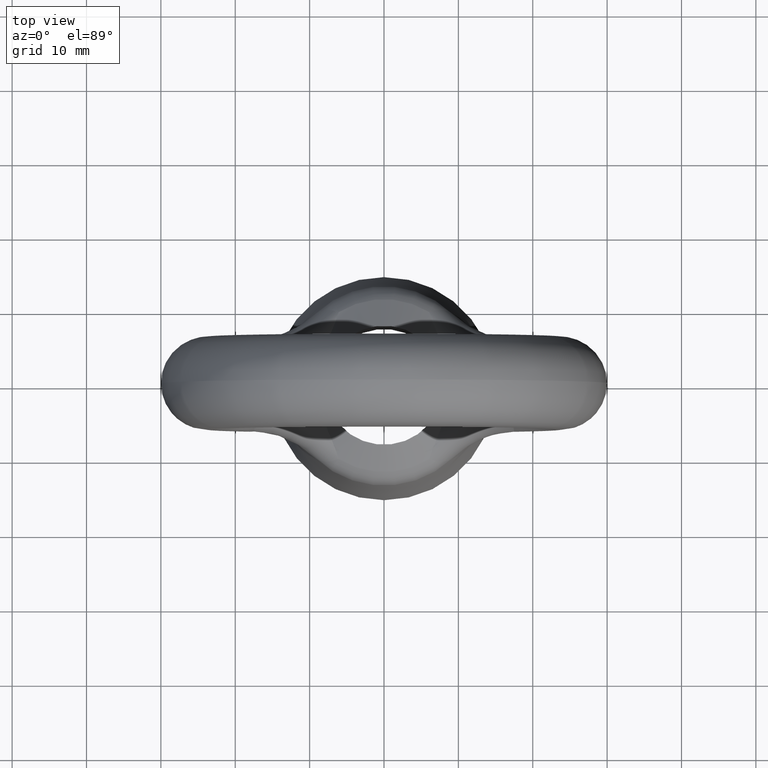
[diagram: clean part render]
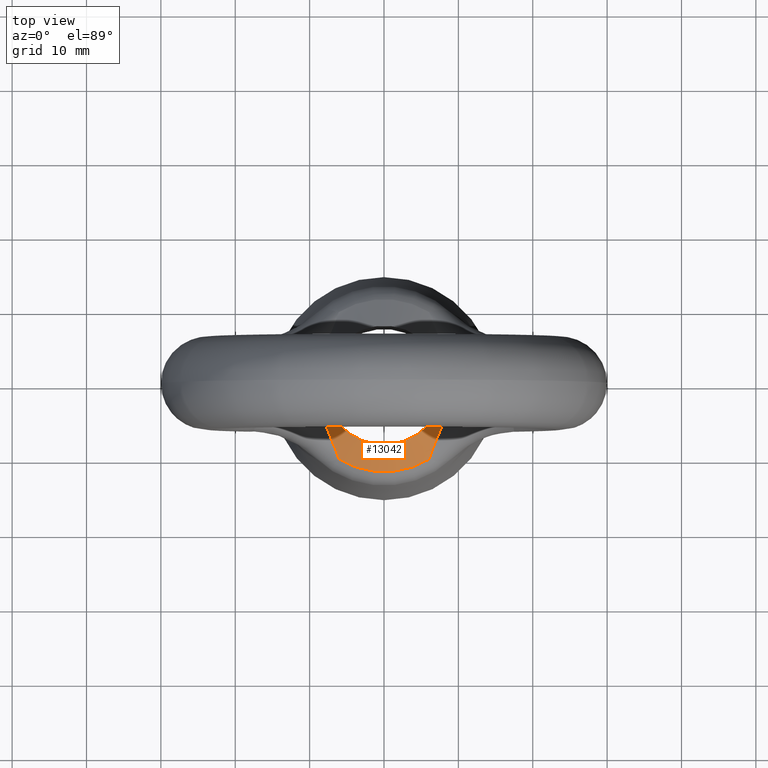
[diagram: same view with one face highlighted and labeled with its STEP entity id]
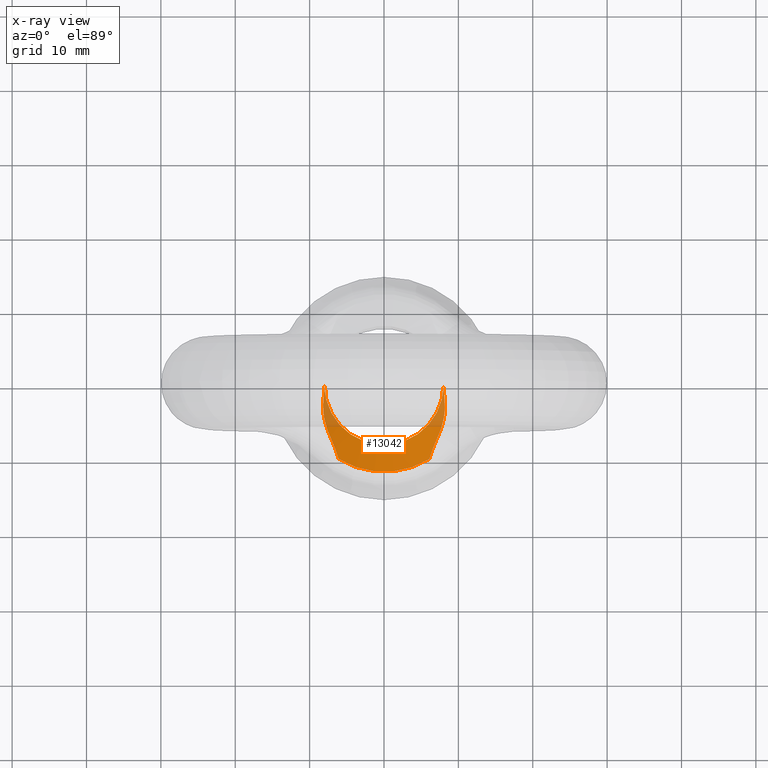
[diagram: x-ray of the same camera — body ghosted, the highlighted face saturated]
A machine part, top view. The second image highlights one B-rep face of the part: STEP entity #13042.
The next image is the same camera in x-ray: the body ghosted, the highlighted face saturated — about 14% of this face is hidden behind the body in this view.
In plain terms, the highlighted conical surface has half-angle 56.799 deg.
Its self-contained STEP definition (entity closure, byte-faithful):
#7915 = CARTESIAN_POINT ( 'NONE',  ( 8.111039694346169800, -1.587437685473579900, -15.73774275576744800 ) ) ;
#7916 = CARTESIAN_POINT ( 'NONE',  ( 8.217635790116757400, -2.314430314569295300, -15.89757747233821700 ) ) ;
#7917 = CARTESIAN_POINT ( 'NONE',  ( 8.226555854875679000, -3.040233067266938000, -16.05058232089250900 ) ) ;
#7918 = CARTESIAN_POINT ( 'NONE',  ( 8.100513173254370300, -4.126467812943272600, -16.27400688545046500 ) ) ;
#7919 = CARTESIAN_POINT ( 'NONE',  ( 8.034309954976079000, -4.490310097197134800, -16.34791179823740500 ) ) ;
#7920 = CARTESIAN_POINT ( 'NONE',  ( 7.859311400499129800, -5.202648705140567200, -16.49285660825615800 ) ) ;
#7921 = CARTESIAN_POINT ( 'NONE',  ( 7.750543323805493000, -5.551610496330256200, -16.56388529958299900 ) ) ;
#7932 = CARTESIAN_POINT ( 'NONE',  ( 7.375712610483119200, -6.579826749095270900, -16.78131778740051400 ) ) ;
#7933 = CARTESIAN_POINT ( 'NONE',  ( 7.058717465188572700, -7.239327123376845000, -16.93283068266142900 ) ) ;
#7934 = CARTESIAN_POINT ( 'NONE',  ( 6.653723414931219400, -8.227540426303065100, -17.25049923829543300 ) ) ;
#7935 = CARTESIAN_POINT ( 'NONE',  ( 6.528693431890683700, -8.556584339415492100, -17.36990509252606100 ) ) ;
#7936 = CARTESIAN_POINT ( 'NONE',  ( 6.355134076538875300, -9.050376589787532600, -17.56546316260718800 ) ) ;
#7937 = CARTESIAN_POINT ( 'NONE',  ( 6.299539716819043500, -9.214994829293337000, -17.63335989737461100 ) ) ;
#7938 = CARTESIAN_POINT ( 'NONE',  ( 6.192426394619384500, -9.544315074302424800, -17.77388554528459600 ) ) ;
#7939 = CARTESIAN_POINT ( 'NONE',  ( 6.140479205031492200, -9.710695131647845800, -17.84730325807265700 ) ) ;
#7970 = CARTESIAN_POINT ( 'NONE',  ( 6.091302224946269400, -9.873597760385759900, -17.92113412167020000 ) ) ;
#7971 = B_SPLINE_CURVE_WITH_KNOTS ( 'NONE', 3,
 ( #7970, #7939, #7938, #7937, #7936, #7935, #7934, #7933, #7932, #7921, #7920, #7919, #7918, #7917, #7916, #7915 ),
 .UNSPECIFIED., .F., .F.,
 ( 4, 2, 2, 2, 2, 2, 2, 4 ),
 ( -1.851355383079301500E-005, 0.0005379572279559895200, 0.001094428009742772100, 0.002207369573316341300, 0.004433252700463475800, 0.005546194264037043900, 0.006659135827610611200, 0.008885018954757743100 ),
 .UNSPECIFIED. ) ;
#12548 = CARTESIAN_POINT ( 'NONE',  ( -6.091302224946269400, -9.873597760385751000, -17.92113412167020000 ) ) ;
#12549 = CARTESIAN_POINT ( 'NONE',  ( -8.217635998707377700, -2.314431737171499300, -15.89757778510785300 ) ) ;
#12550 = CARTESIAN_POINT ( 'NONE',  ( -8.111039694346160900, -1.587437685473565000, -15.73774275576744800 ) ) ;
#12552 = B_SPLINE_CURVE_WITH_KNOTS ( 'NONE', 3,
 ( #12550, #12549, #12591, #12590, #12589, #12588, #12587, #12586, #12585, #12584, #12583, #12582, #12581, #12580, #12579, #12578 ),
 .UNSPECIFIED., .F., .F.,
 ( 4, 2, 2, 2, 2, 2, 2, 4 ),
 ( 9.948699630566629800E-018, 0.002223794718669929400, 0.003335692078004891500, 0.004447589437339852800, 0.006671384156009777800, 0.007783281515344743000, 0.008339230195012228100, 0.008895178874679712500 ),
 .UNSPECIFIED. ) ;
#12578 = CARTESIAN_POINT ( 'NONE',  ( -6.091302224946269400, -9.873597760385751000, -17.92113412167020000 ) ) ;
#12579 = CARTESIAN_POINT ( 'NONE',  ( -6.140433064541015000, -9.710847973019580700, -17.84737252869069100 ) ) ;
#12580 = CARTESIAN_POINT ( 'NONE',  ( -6.192421693561192000, -9.544329898502747200, -17.77389200909144400 ) ) ;
#12581 = CARTESIAN_POINT ( 'NONE',  ( -6.299534985769382100, -9.215009004170955400, -17.63336580790032200 ) ) ;
#12582 = CARTESIAN_POINT ( 'NONE',  ( -6.355129332439315000, -9.050390440746346200, -17.56546879633895800 ) ) ;
#12583 = CARTESIAN_POINT ( 'NONE',  ( -6.528688655799907500, -8.556597220744974300, -17.36990989738859200 ) ) ;
#12584 = CARTESIAN_POINT ( 'NONE',  ( -6.653718617779438700, -8.227552662357165800, -17.25050348697773800 ) ) ;
#12585 = CARTESIAN_POINT ( 'NONE',  ( -7.058712794417818500, -7.239337459057872500, -16.93283337453760100 ) ) ;
#12586 = CARTESIAN_POINT ( 'NONE',  ( -7.375708695414563600, -6.579835946541130000, -16.78131982651492400 ) ) ;
#12587 = CARTESIAN_POINT ( 'NONE',  ( -7.750540880452550000, -5.551617969880273200, -16.56388683289849000 ) ) ;
#12588 = CARTESIAN_POINT ( 'NONE',  ( -7.859309442581447600, -5.202655590875020900, -16.49285801192319700 ) ) ;
#12589 = CARTESIAN_POINT ( 'NONE',  ( -8.034308830905056100, -4.490315756801759800, -16.34791294726344200 ) ) ;
#12590 = CARTESIAN_POINT ( 'NONE',  ( -8.100512414003945900, -4.126472769235884500, -16.27400789822528500 ) ) ;
#12591 = CARTESIAN_POINT ( 'NONE',  ( -8.226555893507397200, -3.040235908153027500, -16.05058291856831700 ) ) ;
#13042 = ADVANCED_FACE ( 'NONE', ( #13129 ), #13127, .T. ) ;
#13043 = EDGE_LOOP ( 'NONE', ( #13310, #13311, #13156, #13222, #13224, #13225 ) ) ;
#13070 = EDGE_CURVE ( 'NONE', #13079, #13071, #13471, .T. ) ;
#13071 = VERTEX_POINT ( 'NONE', #13470 ) ;
#13073 = VERTEX_POINT ( 'NONE', #13454 ) ;
#13079 = VERTEX_POINT ( 'NONE', #13600 ) ;
#13085 = EDGE_CURVE ( 'NONE', #13073, #13086, #13536, .T. ) ;
#13086 = VERTEX_POINT ( 'NONE', #13537 ) ;
#13120 = DIRECTION ( 'NONE',  ( 1.000000000000000000, 0.0000000000000000000, 0.0000000000000000000 ) ) ;
#13121 = DIRECTION ( 'NONE',  ( 0.0000000000000000000, 0.0000000000000000000, 1.000000000000000000 ) ) ;
#13122 = CARTESIAN_POINT ( 'NONE',  ( 0.0000000000000000000, 0.0000000000000000000, -17.92113412167020000 ) ) ;
#13123 = AXIS2_PLACEMENT_3D ( 'NONE', #13122, #13121, #13120 ) ;
#13124 = CIRCLE ( 'NONE', #13123, 11.60137472584736100 ) ;
#13127 = CONICAL_SURFACE ( 'NONE', #13297, 13.25006019968007800, 0.9913307740979019300 ) ;
#13129 = FACE_OUTER_BOUND ( 'NONE', #13043, .T. ) ;
#13153 = EDGE_CURVE ( 'NONE', #13073, #13071, #13369, .T. ) ;
#13156 = ORIENTED_EDGE ( 'NONE', *, *, #13157, .T. ) ;
#13157 = EDGE_CURVE ( 'NONE', #13313, #13158, #13124, .T. ) ;
#13158 = VERTEX_POINT ( 'NONE', #13352 ) ;
#13222 = ORIENTED_EDGE ( 'NONE', *, *, #13223, .T. ) ;
#13223 = EDGE_CURVE ( 'NONE', #13158, #13086, #7971, .T. ) ;
#13224 = ORIENTED_EDGE ( 'NONE', *, *, #13085, .F. ) ;
#13225 = ORIENTED_EDGE ( 'NONE', *, *, #13153, .T. ) ;
#13295 = DIRECTION ( 'NONE',  ( 0.0000000000000000000, 0.0000000000000000000, -1.000000000000000000 ) ) ;
#13296 = CARTESIAN_POINT ( 'NONE',  ( 0.0000000000000000000, 0.0000000000000000000, -19.00004190762270200 ) ) ;
#13297 = AXIS2_PLACEMENT_3D ( 'NONE', #13296, #13295, #13322 ) ;
#13310 = ORIENTED_EDGE ( 'NONE', *, *, #13070, .F. ) ;
#13311 = ORIENTED_EDGE ( 'NONE', *, *, #13312, .T. ) ;
#13312 = EDGE_CURVE ( 'NONE', #13079, #13313, #12552, .T. ) ;
#13313 = VERTEX_POINT ( 'NONE', #12548 ) ;
#13322 = DIRECTION ( 'NONE',  ( -1.000000000000000000, 0.0000000000000000000, 0.0000000000000000000 ) ) ;
#13332 = DIRECTION ( 'NONE',  ( -1.000000000000000000, 0.0000000000000000000, 0.0000000000000000000 ) ) ;
#13352 = CARTESIAN_POINT ( 'NONE',  ( 6.091302224946269400, -9.873597760385759900, -17.92113412167020000 ) ) ;
#13366 = DIRECTION ( 'NONE',  ( 0.0000000000000000000, 0.0000000000000000000, -1.000000000000000000 ) ) ;
#13367 = CARTESIAN_POINT ( 'NONE',  ( 0.0000000000000000000, 0.0000000000000000000, -15.56437700000010200 ) ) ;
#13368 = AXIS2_PLACEMENT_3D ( 'NONE', #13367, #13366, #13332 ) ;
#13369 = CIRCLE ( 'NONE', #13368, 8.000000000000000000 ) ;
#13451 = CARTESIAN_POINT ( 'NONE',  ( -8.045737007442703300, -1.068063597566312900, -15.63773547490219300 ) ) ;
#13452 = CARTESIAN_POINT ( 'NONE',  ( -8.073215190745678200, -1.329471996224376600, -15.68102708744298600 ) ) ;
#13453 = CARTESIAN_POINT ( 'NONE',  ( -8.111039694346160900, -1.587437685473565000, -15.73774275576744800 ) ) ;
#13454 = CARTESIAN_POINT ( 'NONE',  ( 8.000000000000000000, 0.0000000000000000000, -15.56437700000015000 ) ) ;
#13470 = CARTESIAN_POINT ( 'NONE',  ( -8.000000000000000000, 0.0000000000000000000, -15.56437700000010200 ) ) ;
#13471 = B_SPLINE_CURVE_WITH_KNOTS ( 'NONE', 3,
 ( #13453, #13452, #13451, #13609, #13608, #13607 ),
 .UNSPECIFIED., .F., .F.,
 ( 4, 2, 4 ),
 ( 0.007011151935412306000, 0.007809217623441650100, 0.008607283311470995100 ),
 .UNSPECIFIED. ) ;
#13517 = CARTESIAN_POINT ( 'NONE',  ( 8.111039694346169800, -1.587437685473579900, -15.73774275576744800 ) ) ;
#13518 = CARTESIAN_POINT ( 'NONE',  ( 8.034739435842126900, -1.067064728757689500, -15.62333490523499800 ) ) ;
#13519 = CARTESIAN_POINT ( 'NONE',  ( 8.000004606485253700, -0.5378854802323731500, -15.56437998610500500 ) ) ;
#13520 = CARTESIAN_POINT ( 'NONE',  ( 8.000000000000000000, 0.0000000000000000000, -15.56437700000015000 ) ) ;
#13536 = B_SPLINE_CURVE_WITH_KNOTS ( 'NONE', 3,
 ( #13520, #13519, #13518, #13517 ),
 .UNSPECIFIED., .F., .F.,
 ( 4, 4 ),
 ( 0.008607283311471000300, 0.01020782760571694500 ),
 .UNSPECIFIED. ) ;
#13537 = CARTESIAN_POINT ( 'NONE',  ( 8.111039694346169800, -1.587437685473579900, -15.73774275576744800 ) ) ;
#13600 = CARTESIAN_POINT ( 'NONE',  ( -8.111039694346160900, -1.587437685473565000, -15.73774275576744800 ) ) ;
#13607 = CARTESIAN_POINT ( 'NONE',  ( -8.000000000000000000, 0.0000000000000000000, -15.56437700000010200 ) ) ;
#13608 = CARTESIAN_POINT ( 'NONE',  ( -8.000004650171268500, -0.2682021957783544100, -15.56438005725637600 ) ) ;
#13609 = CARTESIAN_POINT ( 'NONE',  ( -8.009119476214849000, -0.5383928130978474800, -15.57938130876970600 ) ) ;